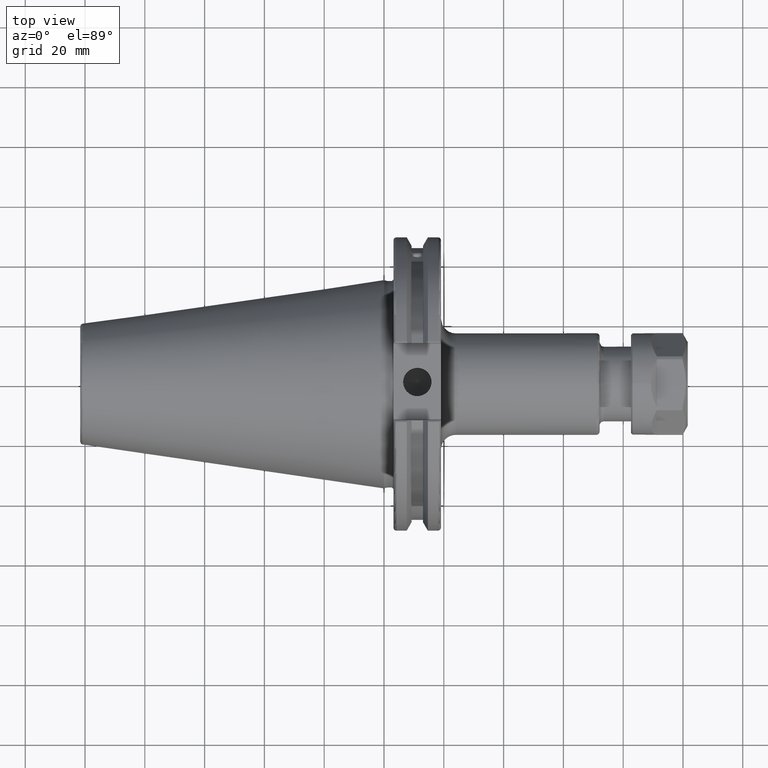
[diagram: clean part render]
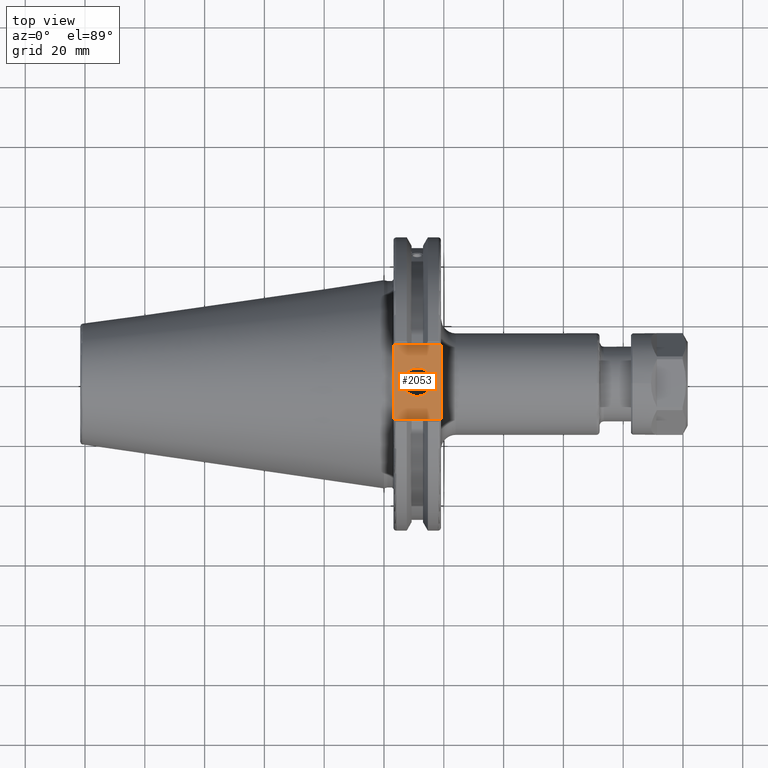
[diagram: same view with one face highlighted and labeled with its STEP entity id]
A machine part, top view. The second image highlights one B-rep face of the part: STEP entity #2053.
In plain terms, the highlighted planar face has unit normal (0, 0, 1).
Its self-contained STEP definition (entity closure, byte-faithful):
#193=FACE_BOUND('',#476,.T.);
#237=PLANE('',#2325);
#340=FACE_OUTER_BOUND('',#475,.T.);
#475=EDGE_LOOP('',(#1799,#1800,#1801,#1802));
#476=EDGE_LOOP('',(#1803));
#526=LINE('',#3140,#646);
#566=LINE('',#3640,#686);
#597=LINE('',#3875,#717);
#599=LINE('',#3878,#719);
#646=VECTOR('',#2482,10.);
#686=VECTOR('',#2652,10.);
#717=VECTOR('',#2749,10.);
#719=VECTOR('',#2753,10.);
#830=CIRCLE('',#2310,4.7625);
#892=VERTEX_POINT('',#3137);
#893=VERTEX_POINT('',#3139);
#969=VERTEX_POINT('',#3637);
#970=VERTEX_POINT('',#3639);
#1016=VERTEX_POINT('',#3908);
#1100=EDGE_CURVE('',#892,#893,#526,.T.);
#1200=EDGE_CURVE('',#969,#970,#566,.T.);
#1266=EDGE_CURVE('',#893,#969,#597,.T.);
#1268=EDGE_CURVE('',#970,#892,#599,.T.);
#1280=EDGE_CURVE('',#1016,#1016,#830,.T.);
#1799=ORIENTED_EDGE('',*,*,#1266,.F.);
#1800=ORIENTED_EDGE('',*,*,#1100,.F.);
#1801=ORIENTED_EDGE('',*,*,#1268,.F.);
#1802=ORIENTED_EDGE('',*,*,#1200,.F.);
#1803=ORIENTED_EDGE('',*,*,#1280,.T.);
#2053=ADVANCED_FACE('',(#340,#193),#237,.T.);
#2310=AXIS2_PLACEMENT_3D('',#3909,#2785,#2786);
#2325=AXIS2_PLACEMENT_3D('',#3925,#2816,#2817);
#2482=DIRECTION('',(0.,-1.,0.));
#2652=DIRECTION('',(0.,1.,0.));
#2749=DIRECTION('',(-1.,1.31581988103722E-16,0.));
#2753=DIRECTION('',(1.,0.,0.));
#2785=DIRECTION('center_axis',(0.,0.,-1.));
#2786=DIRECTION('ref_axis',(1.,0.,0.));
#2816=DIRECTION('center_axis',(0.,0.,1.));
#2817=DIRECTION('ref_axis',(1.,0.,0.));
#3137=CARTESIAN_POINT('',(19.05,12.45,37.719));
#3139=CARTESIAN_POINT('',(19.05,-12.45,37.719));
#3140=CARTESIAN_POINT('',(19.05,0.,37.719));
#3637=CARTESIAN_POINT('',(3.175,-12.45,37.719));
#3639=CARTESIAN_POINT('',(3.175,12.45,37.719));
#3640=CARTESIAN_POINT('',(3.175,24.60625,37.719));
#3875=CARTESIAN_POINT('',(10.63125,-12.45,37.719));
#3878=CARTESIAN_POINT('',(19.06875,12.45,37.719));
#3908=CARTESIAN_POINT('',(6.3716,-5.83238038093927E-16,37.719));
#3909=CARTESIAN_POINT('Origin',(11.1341,0.,37.719));
#3925=CARTESIAN_POINT('Origin',(18.0875,0.,37.719));